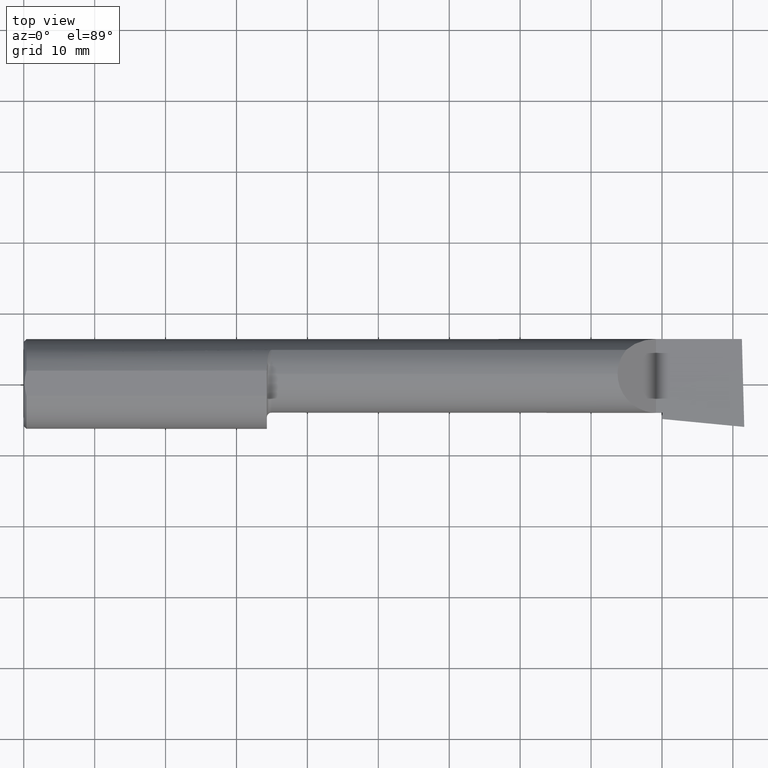
[diagram: clean part render]
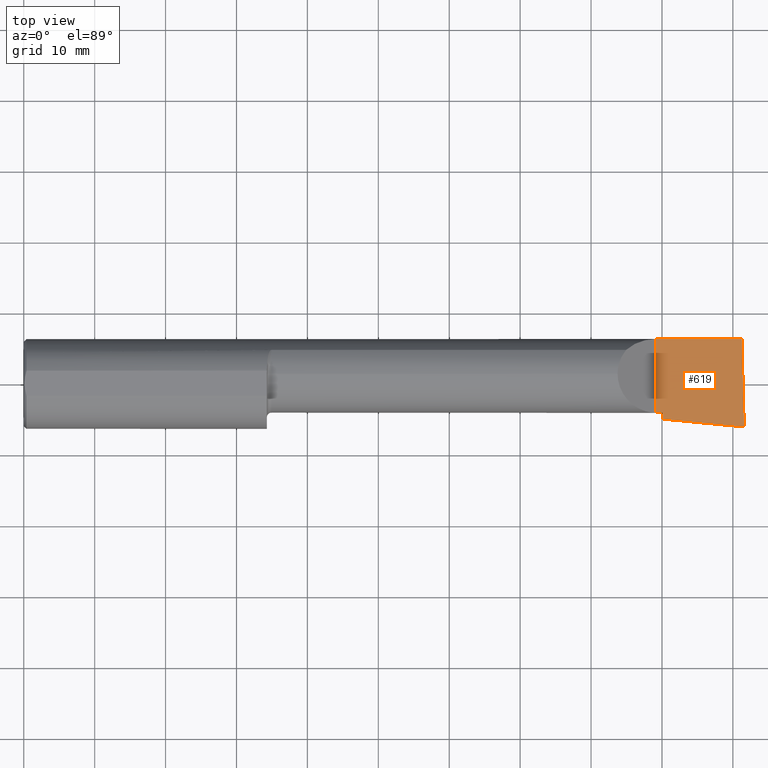
[diagram: same view with one face highlighted and labeled with its STEP entity id]
A machine part, top view. The second image highlights one B-rep face of the part: STEP entity #619.
In plain terms, the highlighted planar face has unit normal (-0, 0, -1).
Its self-contained STEP definition (entity closure, byte-faithful):
#37 = VERTEX_POINT ( 'NONE', #726 ) ;
#48 = VERTEX_POINT ( 'NONE', #375 ) ;
#116 = CARTESIAN_POINT ( 'NONE',  ( 4.000317226026191442, -0.2499915017238489578, -1.366403949535045289E-16 ) ) ;
#162 = ORIENTED_EDGE ( 'NONE', *, *, #305, .T. ) ;
#168 = CARTESIAN_POINT ( 'NONE',  ( 3.509999999999999787, -0.2500000000000000555, -6.245698675651498620E-17 ) ) ;
#174 = VECTOR ( 'NONE', #522, 39.37007874015748143 ) ;
#193 = VECTOR ( 'NONE', #701, 39.37007874015748143 ) ;
#206 = AXIS2_PLACEMENT_3D ( 'NONE', #686, #395, #576 ) ;
#213 = VERTEX_POINT ( 'NONE', #573 ) ;
#222 = VECTOR ( 'NONE', #295, 39.37007874015748143 ) ;
#232 = CARTESIAN_POINT ( 'NONE',  ( 3.544999999999999929, -0.2500000000000000555, -6.775237339413629936E-17 ) ) ;
#233 = VERTEX_POINT ( 'NONE', #279 ) ;
#252 = ORIENTED_EDGE ( 'NONE', *, *, #431, .T. ) ;
#260 = CARTESIAN_POINT ( 'NONE',  ( 3.986926801651458074, 0.2498499999999998500, -1.346424553798598529E-16 ) ) ;
#279 = CARTESIAN_POINT ( 'NONE',  ( 3.544999999999999929, -0.1943384830701201105, 4.684692457885201525E-16 ) ) ;
#291 = ORIENTED_EDGE ( 'NONE', *, *, #671, .F. ) ;
#295 = DIRECTION ( 'NONE',  ( 1.000000000000000000, 0.000000000000000000, 0.000000000000000000 ) ) ;
#300 = EDGE_CURVE ( 'NONE', #37, #48, #625, .T. ) ;
#305 = EDGE_CURVE ( 'NONE', #376, #233, #453, .T. ) ;
#317 = VECTOR ( 'NONE', #430, 39.37007874015748143 ) ;
#335 = CARTESIAN_POINT ( 'NONE',  ( 4.001130543297605868, -0.2382588589380726651, -1.367634472223958767E-16 ) ) ;
#338 = DIRECTION ( 'NONE',  ( 0.9953961983671787417, -0.09584575252022418945, -1.501092988330048720E-16 ) ) ;
#339 = DIRECTION ( 'NONE',  ( -0.000000000000000000, 1.000000000000000000, -0.000000000000000000 ) ) ;
#343 = PLANE ( 'NONE',  #206 ) ;
#345 = ORIENTED_EDGE ( 'NONE', *, *, #561, .F. ) ;
#368 = LINE ( 'NONE', #599, #222 ) ;
#375 = CARTESIAN_POINT ( 'NONE',  ( 3.509999999999999787, 0.2498499999999998222, -6.245698675651498620E-17 ) ) ;
#376 = VERTEX_POINT ( 'NONE', #652 ) ;
#395 = DIRECTION ( 'NONE',  ( -1.512967610748942321E-16, 0.000000000000000000, -1.000000000000000000 ) ) ;
#411 = EDGE_LOOP ( 'NONE', ( #291, #345, #593, #252, #162, #520 ) ) ;
#418 = VECTOR ( 'NONE', #339, 39.37007874015748143 ) ;
#423 = CARTESIAN_POINT ( 'NONE',  ( 7.089685198749692867E-32, 0.2498499999999999610, 4.685946446163635703E-16 ) ) ;
#430 = DIRECTION ( 'NONE',  ( 1.000000000000000000, 0.000000000000000000, 0.000000000000000000 ) ) ;
#431 = EDGE_CURVE ( 'NONE', #37, #376, #368, .T. ) ;
#453 = LINE ( 'NONE', #232, #193 ) ;
#520 = ORIENTED_EDGE ( 'NONE', *, *, #705, .T. ) ;
#522 = DIRECTION ( 'NONE',  ( 0.02677973311239339668, -0.9996413586354002678, -3.995712686884936666E-18 ) ) ;
#538 = VERTEX_POINT ( 'NONE', #260 ) ;
#561 = EDGE_CURVE ( 'NONE', #48, #538, #732, .T. ) ;
#573 = CARTESIAN_POINT ( 'NONE',  ( 4.000000000000001776, -0.2381500000000004447, 4.609993489308444058E-16 ) ) ;
#576 = DIRECTION ( 'NONE',  ( -1.000000000000000000, 0.000000000000000000, 1.512967610748942321E-16 ) ) ;
#593 = ORIENTED_EDGE ( 'NONE', *, *, #300, .F. ) ;
#599 = CARTESIAN_POINT ( 'NONE',  ( 7.089685198749692867E-32, -0.1601500000000000978, 4.685946446163635703E-16 ) ) ;
#619 = ADVANCED_FACE ( 'NONE', ( #698 ), #343, .F. ) ;
#625 = LINE ( 'NONE', #168, #418 ) ;
#627 = LINE ( 'NONE', #335, #753 ) ;
#652 = CARTESIAN_POINT ( 'NONE',  ( 3.544999999999999929, -0.1601499999999999868, 4.685946446163634717E-16 ) ) ;
#671 = EDGE_CURVE ( 'NONE', #538, #213, #748, .T. ) ;
#686 = CARTESIAN_POINT ( 'NONE',  ( 4.000000000000000000, -0.2500000000000000555, -1.365923996832131609E-16 ) ) ;
#698 = FACE_OUTER_BOUND ( 'NONE', #411, .T. ) ;
#701 = DIRECTION ( 'NONE',  ( 0.000000000000000000, -1.000000000000000000, 0.000000000000000000 ) ) ;
#705 = EDGE_CURVE ( 'NONE', #233, #213, #627, .T. ) ;
#726 = CARTESIAN_POINT ( 'NONE',  ( 3.509999999999999787, -0.1601500000000002089, -6.245698675651498620E-17 ) ) ;
#732 = LINE ( 'NONE', #423, #317 ) ;
#748 = LINE ( 'NONE', #116, #174 ) ;
#753 = VECTOR ( 'NONE', #338, 39.37007874015748143 ) ;